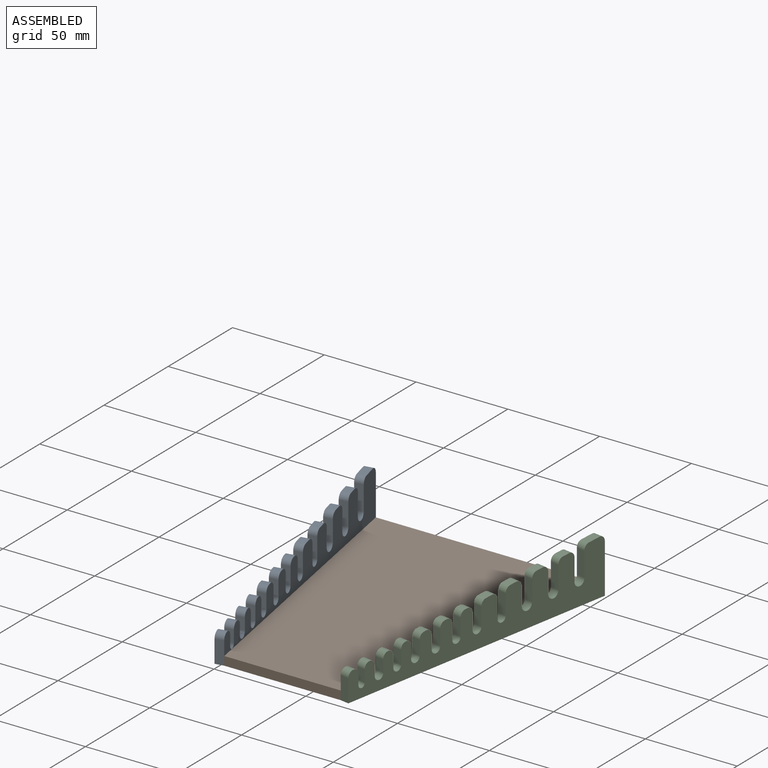
[diagram: assembled view]
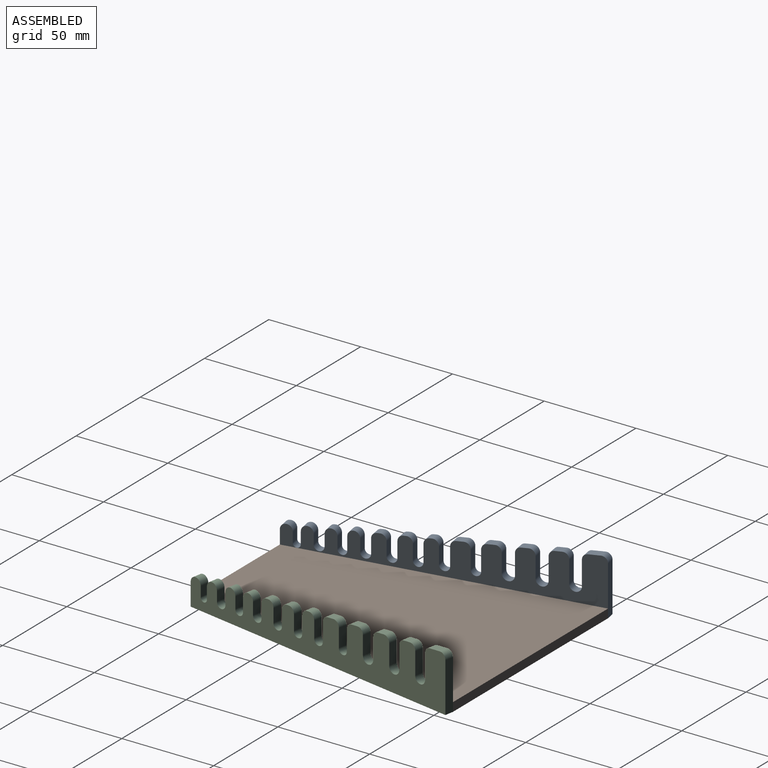
[diagram: assembled view, second angle]
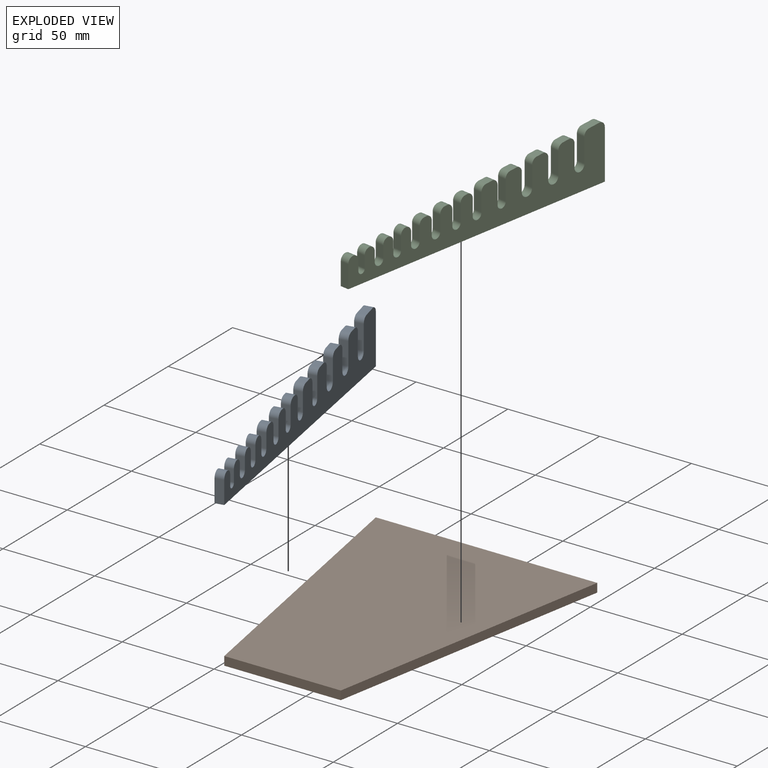
[diagram: exploded view]
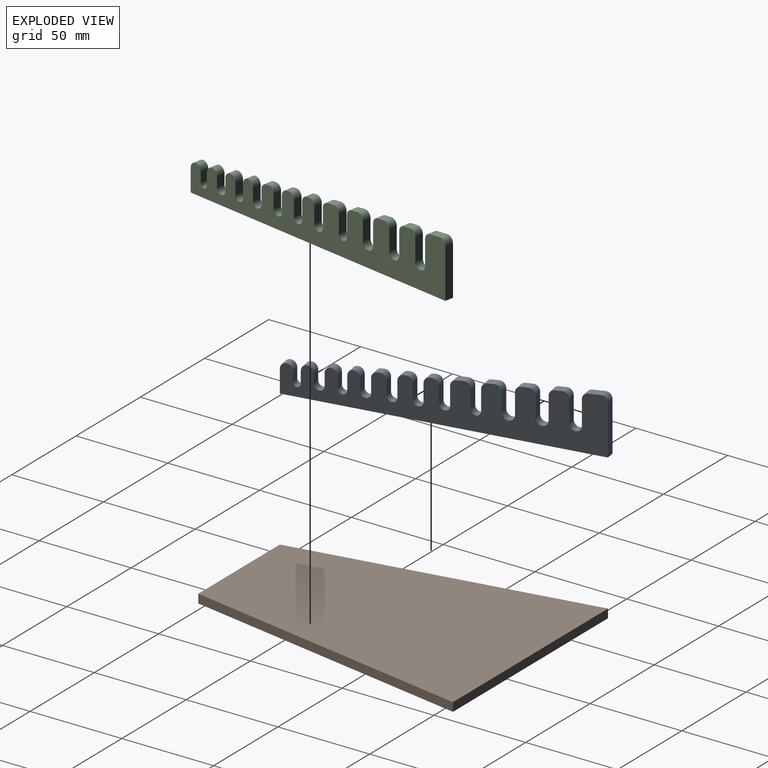
[diagram: exploded view, second angle]
ASSEMBLY  parts=3 mates=2
PART A: 66 faces, bbox 33.3x159.6x30.2 mm
  f0: plane 12.35x4.69mm, normal (0.18,-0.98,0), area 58.8mm2, adj f1,f63,f64,f65
  f1: plane 159.59x33.26mm, normal (0,0,-1), area 768.2mm2, adj f0,f2,f64,f65
  f2: plane 26.99x4.69mm, normal (-0.18,0.98,0), area 128.5mm2, adj f1,f3,f64,f65
  f3: cylinder r=3.17mm len=5.3mm, axis (0.98,0.18,0), area 25.2mm2, adj f2,f4,f64,f65
  f4: plane 7.23x5.84mm, normal (0.02,-0.09,1), area 31mm2, adj f3,f5,f64,f65
  f5: cylinder r=3.17mm len=5.2mm, axis (0.98,0.18,0), area 22.3mm2, adj f4,f6,f64,f65
  f6: plane 13.36x4.69mm, normal (0.18,-0.98,0), area 63.6mm2, adj f5,f7,f64,f65
  f7: cylinder r=3.11mm len=6.97mm, axis (0.98,0.18,0), area 46.6mm2, adj f6,f8,f64,f65
  f8: plane 12.17x4.69mm, normal (-0.18,0.98,0), area 58mm2, adj f7,f9,f64,f65
  f9: cylinder r=3.17mm len=5.3mm, axis (0.98,0.18,0), area 25.2mm2, adj f8,f10,f64,f65
  f10: plane 5.36x4.59mm, normal (0.02,-0.09,1), area 18.2mm2, adj f9,f11,f64,f65
  f11: cylinder r=3.17mm len=5.2mm, axis (0.98,0.18,0), area 22.3mm2, adj f10,f12,f64,f65
  f12: plane 12.36x4.69mm, normal (0.18,-0.98,0), area 58.9mm2, adj f11,f13,f64,f65
  f13: cylinder r=3.17mm len=7.09mm, axis (0.98,0.18,0), area 47.5mm2, adj f12,f14,f64,f65
  f14: plane 11.16x4.69mm, normal (-0.18,0.98,0), area 53.2mm2, adj f13,f15,f64,f65
  f15: cylinder r=3.17mm len=5.3mm, axis (0.98,0.18,0), area 25.2mm2, adj f14,f16,f64,f65
  f16: plane 5.36x4.59mm, normal (0.02,-0.09,1), area 18.2mm2, adj f15,f17,f64,f65
  f17: cylinder r=3.17mm len=5.2mm, axis (0.98,0.18,0), area 22.3mm2, adj f16,f18,f64,f65
  f18: plane 11.35x4.69mm, normal (0.18,-0.98,0), area 54.1mm2, adj f17,f19,f64,f65
  f19: cylinder r=3.24mm len=7.22mm, axis (0.98,0.18,0), area 48.5mm2, adj f18,f20,f64,f65
  f20: plane 10.14x4.69mm, normal (-0.18,0.98,0), area 48.3mm2, adj f19,f21,f64,f65
  f21: cylinder r=3.17mm len=5.3mm, axis (0.98,0.18,0), area 25.2mm2, adj f20,f22,f64,f65
  f22: plane 5.36x4.59mm, normal (0.02,-0.09,1), area 18.2mm2, adj f21,f23,f64,f65
  f23: cylinder r=3.17mm len=5.2mm, axis (0.98,0.18,0), area 22.3mm2, adj f22,f24,f64,f65
  f24: plane 11.07x4.69mm, normal (0.18,-0.98,0), area 52.7mm2, adj f23,f25,f64,f65
  f25: cylinder r=2.54mm len=5.84mm, axis (0.98,0.18,0), area 38mm2, adj f24,f26,f64,f65
  f26: plane 9.99x4.69mm, normal (-0.18,0.98,0), area 47.6mm2, adj f25,f27,f64,f65
  f27: cylinder r=3.17mm len=5.3mm, axis (0.98,0.18,0), area 25.2mm2, adj f26,f28,f64,f65
  f28: plane 5.36x4.59mm, normal (0.02,-0.09,1), area 18.2mm2, adj f27,f29,f64,f65
  f29: cylinder r=3.17mm len=5.2mm, axis (0.98,0.18,0), area 22.3mm2, adj f28,f30,f64,f65
  f30: plane 10.01x4.69mm, normal (0.18,-0.98,0), area 47.7mm2, adj f29,f31,f64,f65
  f31: cylinder r=2.73mm len=6.22mm, axis (0.98,0.18,0), area 40.9mm2, adj f30,f32,f64,f65
  f32: plane 8.89x4.69mm, normal (-0.18,0.98,0), area 42.4mm2, adj f31,f33,f64,f65
  f33: cylinder r=3.17mm len=5.3mm, axis (0.98,0.18,0), area 25.2mm2, adj f32,f34,f64,f65
  f34: plane 4.91x2.09mm, normal (0.02,-0.09,1), area 6.1mm2, adj f33,f35,f64,f65
  f35: cylinder r=3.17mm len=5.2mm, axis (0.98,0.18,0), area 22.3mm2, adj f34,f36,f64,f65
  f36: plane 9.38x4.69mm, normal (0.18,-0.98,0), area 44.7mm2, adj f35,f37,f64,f65
  f37: cylinder r=2.6mm len=5.97mm, axis (0.98,0.18,0), area 39mm2, adj f36,f38,f64,f65
  f38: plane 8.29x4.69mm, normal (-0.18,0.98,0), area 39.5mm2, adj f37,f39,f64,f65
  f39: cylinder r=3.17mm len=5.3mm, axis (0.98,0.18,0), area 25.2mm2, adj f38,f40,f64,f65
  f40: plane 4.91x2.09mm, normal (0.02,-0.09,1), area 6.1mm2, adj f39,f41,f64,f65
  f41: cylinder r=3.17mm len=5.2mm, axis (0.98,0.18,0), area 22.3mm2, adj f40,f42,f64,f65
  f42: plane 8.58x4.69mm, normal (0.18,-0.98,0), area 40.9mm2, adj f41,f43,f64,f65
  f43: cylinder r=2.67mm len=6.09mm, axis (0.98,0.18,0), area 39.9mm2, adj f42,f44,f64,f65
  f44: plane 7.48x4.69mm, normal (-0.18,0.98,0), area 35.6mm2, adj f43,f45,f64,f65
  f45: cylinder r=3.17mm len=5.3mm, axis (0.98,0.18,0), area 25.2mm2, adj f44,f46,f64,f65
  f46: plane 4.91x2.09mm, normal (0.02,-0.09,1), area 6.1mm2, adj f45,f47,f64,f65
  f47: cylinder r=3.17mm len=5.2mm, axis (0.98,0.18,0), area 22.3mm2, adj f46,f48,f64,f65
  f48: plane 7.84x4.69mm, normal (0.18,-0.98,0), area 37.3mm2, adj f47,f49,f64,f65
  f49: cylinder r=2.67mm len=6.09mm, axis (0.98,0.18,0), area 39.9mm2, adj f48,f50,f64,f65
  f50: plane 6.74x4.69mm, normal (-0.18,0.98,0), area 32.1mm2, adj f49,f51,f64,f65
  f51: cylinder r=3.17mm len=7.09mm, axis (0.98,0.18,0), area 47.5mm2, adj f50,f52,f64,f65
  f52: plane 7.41x4.69mm, normal (0.18,-0.98,0), area 35.3mm2, adj f51,f53,f64,f65
  f53: cylinder r=2.41mm len=5.59mm, axis (0.98,0.18,0), area 36.1mm2, adj f52,f54,f64,f65
  f54: plane 6.36x4.69mm, normal (-0.18,0.98,0), area 30.3mm2, adj f53,f55,f64,f65
  f55: cylinder r=3.17mm len=7.09mm, axis (0.98,0.18,0), area 47.5mm2, adj f54,f56,f64,f65
  f56: plane 6.53x4.69mm, normal (0.18,-0.98,0), area 31.1mm2, adj f55,f57,f64,f65
  f57: cylinder r=2.67mm len=6.09mm, axis (0.98,0.18,0), area 39.9mm2, adj f56,f58,f64,f65
  f58: plane 5.42x4.69mm, normal (-0.18,0.98,0), area 25.8mm2, adj f57,f59,f64,f65
  f59: cylinder r=3.17mm len=7.09mm, axis (0.98,0.18,0), area 47.5mm2, adj f58,f60,f64,f65
  f60: plane 6.53x4.69mm, normal (0.18,-0.98,0), area 31.1mm2, adj f59,f61,f64,f65
  f61: cylinder r=1.97mm len=5.38mm, axis (0.98,0.18,0), area 29.5mm2, adj f60,f62,f64,f65
  f62: plane 5.56x4.69mm, normal (-0.18,0.98,0), area 26.5mm2, adj f61,f63,f64,f65
  f63: cylinder r=3.17mm len=7.09mm, axis (0.98,0.18,0), area 47.5mm2, adj f0,f62,f64,f65
  f64: plane 158.75x30.17mm, normal (-0.98,-0.18,0), area 2770.2mm2, adj f0,f1,f2,f3,f4,f5,f6,f7
  f65: plane 158.75x30.17mm, normal (0.98,0.18,0), area 2770.2mm2, adj f0,f1,f2,f3,f4,f5,f6,f7
PART B: 6 faces, bbox 120.7x158.8x4.8 mm
  f0: plane 120.65x4.76mm, normal (0,1,0), area 574.6mm2, adj f1,f3,f4,f5
  f1: plane 158.75x28.58mm, normal (-0.98,-0.18,0), area 768.2mm2, adj f0,f2,f4,f5
  f2: plane 63.5x4.76mm, normal (0,-1,0), area 302.4mm2, adj f1,f3,f4,f5
  f3: plane 158.75x28.58mm, normal (0.98,-0.18,0), area 768.2mm2, adj f0,f2,f4,f5
  f4: plane 158.75x120.65mm, normal (0,0,1), area 14616.9mm2, adj f0,f1,f2,f3
  f5: plane 158.75x120.65mm, normal (0,0,-1), area 14616.9mm2, adj f0,f1,f2,f3
PART C: 66 faces, bbox 33.3x159.6x30.2 mm
  f0: plane 12.35x4.69mm, normal (-0.18,-0.98,0), area 58.8mm2, adj f1,f63,f64,f65
  f1: plane 159.59x33.26mm, normal (0,0,-1), area 768.2mm2, adj f0,f2,f64,f65
  f2: plane 26.99x4.69mm, normal (0.18,0.98,0), area 128.5mm2, adj f1,f3,f64,f65
  f3: cylinder r=3.17mm len=5.3mm, axis (-0.98,0.18,0), area 25.2mm2, adj f2,f4,f64,f65
  f4: plane 7.23x5.84mm, normal (-0.02,-0.09,1), area 31mm2, adj f3,f5,f64,f65
  f5: cylinder r=3.17mm len=5.2mm, axis (-0.98,0.18,0), area 22.3mm2, adj f4,f6,f64,f65
  f6: plane 13.36x4.69mm, normal (-0.18,-0.98,0), area 63.6mm2, adj f5,f7,f64,f65
  f7: cylinder r=3.11mm len=6.97mm, axis (-0.98,0.18,0), area 46.6mm2, adj f6,f8,f64,f65
  f8: plane 12.17x4.69mm, normal (0.18,0.98,0), area 58mm2, adj f7,f9,f64,f65
  f9: cylinder r=3.17mm len=5.3mm, axis (-0.98,0.18,0), area 25.2mm2, adj f8,f10,f64,f65
  f10: plane 5.36x4.59mm, normal (-0.02,-0.09,1), area 18.2mm2, adj f9,f11,f64,f65
  f11: cylinder r=3.17mm len=5.2mm, axis (-0.98,0.18,0), area 22.3mm2, adj f10,f12,f64,f65
  f12: plane 12.36x4.69mm, normal (-0.18,-0.98,0), area 58.9mm2, adj f11,f13,f64,f65
  f13: cylinder r=3.17mm len=7.09mm, axis (-0.98,0.18,0), area 47.5mm2, adj f12,f14,f64,f65
  f14: plane 11.16x4.69mm, normal (0.18,0.98,0), area 53.2mm2, adj f13,f15,f64,f65
  f15: cylinder r=3.17mm len=5.3mm, axis (-0.98,0.18,0), area 25.2mm2, adj f14,f16,f64,f65
  f16: plane 5.36x4.59mm, normal (-0.02,-0.09,1), area 18.2mm2, adj f15,f17,f64,f65
  f17: cylinder r=3.17mm len=5.2mm, axis (-0.98,0.18,0), area 22.3mm2, adj f16,f18,f64,f65
  f18: plane 11.35x4.69mm, normal (-0.18,-0.98,0), area 54.1mm2, adj f17,f19,f64,f65
  f19: cylinder r=3.24mm len=7.22mm, axis (-0.98,0.18,0), area 48.5mm2, adj f18,f20,f64,f65
  f20: plane 10.14x4.69mm, normal (0.18,0.98,0), area 48.3mm2, adj f19,f21,f64,f65
  f21: cylinder r=3.17mm len=5.3mm, axis (-0.98,0.18,0), area 25.2mm2, adj f20,f22,f64,f65
  f22: plane 5.36x4.59mm, normal (-0.02,-0.09,1), area 18.2mm2, adj f21,f23,f64,f65
  f23: cylinder r=3.17mm len=5.2mm, axis (-0.98,0.18,0), area 22.3mm2, adj f22,f24,f64,f65
  f24: plane 11.07x4.69mm, normal (-0.18,-0.98,0), area 52.7mm2, adj f23,f25,f64,f65
  f25: cylinder r=2.54mm len=5.84mm, axis (-0.98,0.18,0), area 38mm2, adj f24,f26,f64,f65
  f26: plane 9.99x4.69mm, normal (0.18,0.98,0), area 47.6mm2, adj f25,f27,f64,f65
  f27: cylinder r=3.17mm len=5.3mm, axis (-0.98,0.18,0), area 25.2mm2, adj f26,f28,f64,f65
  f28: plane 5.36x4.59mm, normal (-0.02,-0.09,1), area 18.2mm2, adj f27,f29,f64,f65
  f29: cylinder r=3.17mm len=5.2mm, axis (-0.98,0.18,0), area 22.3mm2, adj f28,f30,f64,f65
  f30: plane 10.01x4.69mm, normal (-0.18,-0.98,0), area 47.7mm2, adj f29,f31,f64,f65
  f31: cylinder r=2.73mm len=6.22mm, axis (-0.98,0.18,0), area 40.9mm2, adj f30,f32,f64,f65
  f32: plane 8.89x4.69mm, normal (0.18,0.98,0), area 42.4mm2, adj f31,f33,f64,f65
  f33: cylinder r=3.17mm len=5.3mm, axis (-0.98,0.18,0), area 25.2mm2, adj f32,f34,f64,f65
  f34: plane 4.91x2.09mm, normal (-0.02,-0.09,1), area 6.1mm2, adj f33,f35,f64,f65
  f35: cylinder r=3.17mm len=5.2mm, axis (-0.98,0.18,0), area 22.3mm2, adj f34,f36,f64,f65
  f36: plane 9.38x4.69mm, normal (-0.18,-0.98,0), area 44.7mm2, adj f35,f37,f64,f65
  f37: cylinder r=2.6mm len=5.97mm, axis (-0.98,0.18,0), area 39mm2, adj f36,f38,f64,f65
  f38: plane 8.29x4.69mm, normal (0.18,0.98,0), area 39.5mm2, adj f37,f39,f64,f65
  f39: cylinder r=3.17mm len=5.3mm, axis (-0.98,0.18,0), area 25.2mm2, adj f38,f40,f64,f65
  f40: plane 4.91x2.09mm, normal (-0.02,-0.09,1), area 6.1mm2, adj f39,f41,f64,f65
  f41: cylinder r=3.17mm len=5.2mm, axis (-0.98,0.18,0), area 22.3mm2, adj f40,f42,f64,f65
  f42: plane 8.58x4.69mm, normal (-0.18,-0.98,0), area 40.9mm2, adj f41,f43,f64,f65
  f43: cylinder r=2.67mm len=6.09mm, axis (-0.98,0.18,0), area 39.9mm2, adj f42,f44,f64,f65
  f44: plane 7.48x4.69mm, normal (0.18,0.98,0), area 35.6mm2, adj f43,f45,f64,f65
  f45: cylinder r=3.17mm len=5.3mm, axis (-0.98,0.18,0), area 25.2mm2, adj f44,f46,f64,f65
  f46: plane 4.91x2.09mm, normal (-0.02,-0.09,1), area 6.1mm2, adj f45,f47,f64,f65
  f47: cylinder r=3.17mm len=5.2mm, axis (-0.98,0.18,0), area 22.3mm2, adj f46,f48,f64,f65
  f48: plane 7.84x4.69mm, normal (-0.18,-0.98,0), area 37.3mm2, adj f47,f49,f64,f65
  f49: cylinder r=2.67mm len=6.09mm, axis (-0.98,0.18,0), area 39.9mm2, adj f48,f50,f64,f65
  f50: plane 6.74x4.69mm, normal (0.18,0.98,0), area 32.1mm2, adj f49,f51,f64,f65
  f51: cylinder r=3.17mm len=7.09mm, axis (-0.98,0.18,0), area 47.5mm2, adj f50,f52,f64,f65
  f52: plane 7.41x4.69mm, normal (-0.18,-0.98,0), area 35.3mm2, adj f51,f53,f64,f65
  f53: cylinder r=2.41mm len=5.59mm, axis (-0.98,0.18,0), area 36.1mm2, adj f52,f54,f64,f65
  f54: plane 6.36x4.69mm, normal (0.18,0.98,0), area 30.3mm2, adj f53,f55,f64,f65
  f55: cylinder r=3.17mm len=7.09mm, axis (-0.98,0.18,0), area 47.5mm2, adj f54,f56,f64,f65
  f56: plane 6.53x4.69mm, normal (-0.18,-0.98,0), area 31.1mm2, adj f55,f57,f64,f65
  f57: cylinder r=2.67mm len=6.09mm, axis (-0.98,0.18,0), area 39.9mm2, adj f56,f58,f64,f65
  f58: plane 5.42x4.69mm, normal (0.18,0.98,0), area 25.8mm2, adj f57,f59,f64,f65
  f59: cylinder r=3.17mm len=7.09mm, axis (-0.98,0.18,0), area 47.5mm2, adj f58,f60,f64,f65
  f60: plane 6.53x4.69mm, normal (-0.18,-0.98,0), area 31.1mm2, adj f59,f61,f64,f65
  f61: cylinder r=1.97mm len=5.38mm, axis (-0.98,0.18,0), area 29.5mm2, adj f60,f62,f64,f65
  f62: plane 5.56x4.69mm, normal (0.18,0.98,0), area 26.5mm2, adj f61,f63,f64,f65
  f63: cylinder r=3.17mm len=7.09mm, axis (-0.98,0.18,0), area 47.5mm2, adj f0,f62,f64,f65
  f64: plane 158.75x30.17mm, normal (0.98,-0.18,0), area 2770.2mm2, adj f0,f1,f2,f3,f4,f5,f6,f7
  f65: plane 158.75x30.17mm, normal (-0.98,0.18,0), area 2770.2mm2, adj f0,f1,f2,f3,f4,f5,f6,f7
PLACE A t=(-12.66,0,0)mm
PLACE B t=(-12.66,0,0)mm
PLACE C t=(-12.66,0,0)mm
MATE fastened B.f5 <-> A.f1  axis (0,0,1) through (-72.98,158.75,0)mm
MATE fastened C.f1 <-> B.f5  axis (0,0,1) through (47.67,158.75,0)mm
